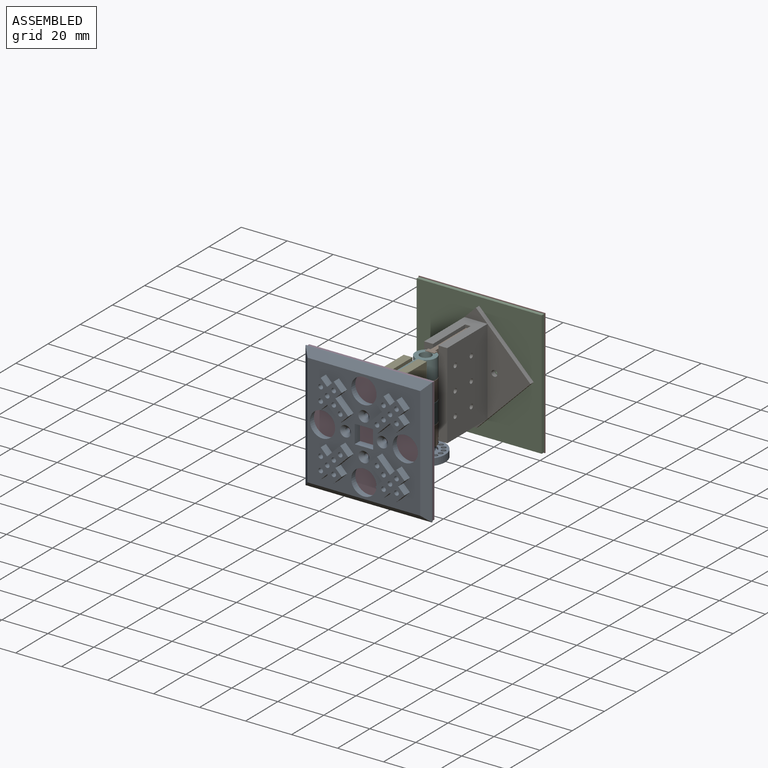
[diagram: assembled view]
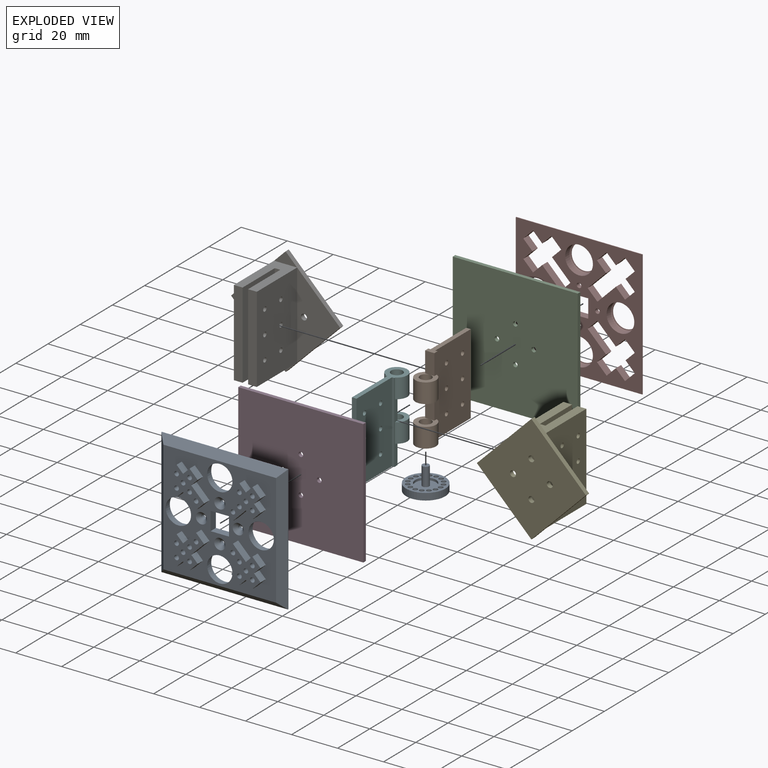
[diagram: exploded view]
GUIDED TOUR — MATED ASSEMBLY (Onshape document 5890c1cd3309240fdb452fa5, AutoMate assembly 5890c1cd3309240fdb452fa5_4b6ae7bb78ce8952fab262f6_d1658a0b5789746fcbf5f51b_default)

This assembly has 9 components, labeled P0..P8 below (a component is one placed occurrence of a part; the same part can appear more than once), held together by 13 mates. A mate is a constraint between two components; its type names the relative motion it leaves free:
  PLANAR — leaves sliding in the plane through the listed point (normal = the listed direction) and rotation about that normal free,
  REVOLUTE — leaves rotation about the listed axis free (a hinge),
  SLIDER — leaves translation along the listed axis free.
Axis/direction vectors are unit vectors and 'through' points are millimeter coordinates, both in the assembly's world frame.

MATES
  1. SLIDER "Slider 7": P2 <-> P6, axis (0.000, -1.000, 0.000) through (11.00, 66.49, 9.60) mm
  2. SLIDER "Slider 6": P7 <-> P2, axis (0.000, 1.000, 0.000) through (3.00, 71.39, 1.60) mm
  3. SLIDER "Slider 3": P8 <-> P3, axis (0.000, -1.000, 0.000) through (3.20, -5.41, 1.35) mm
  4. SLIDER "Slider 1": P5 <-> P4, axis (1.000, 0.000, 0.000) through (4.20, 11.49, -0.65) mm
  5. PLANAR "Planar 2": P8 <-> P3, direction (0.000, 1.000, 0.000) through (3.20, -2.11, 9.35) mm
  6. SLIDER "Slider 8": P0 <-> P1, axis (0.000, 0.000, 1.000) through (3.20, 32.99, -3.05) mm
  7. SLIDER "Slider 2": P3 <-> P4, axis (0.000, -1.000, 0.000) through (-4.80, -2.11, 9.35) mm
  8. PLANAR "Planar 1": P3 <-> P4, direction (0.000, 1.000, 0.000) through (-24.00, -0.51, 36.55) mm
  9. PLANAR "Planar 3": P2 <-> P6, direction (0.000, -1.000, 0.000) through (3.00, 66.49, 9.60) mm
  10. PLANAR "Planar 5": P6 <-> P1, direction (-1.000, 0.000, 0.000) through (4.20, 49.49, 9.60) mm
  11. SLIDER "Slider 5": P6 <-> P1, axis (-1.000, 0.000, 0.000) through (4.20, 54.49, -0.40) mm
  12. REVOLUTE "Revolute 1": P1 <-> P5, axis (0.000, 0.000, 1.000) through (3.20, 32.99, 18.10) mm
  13. PLANAR "Planar 4": P7 <-> P2, direction (0.000, -1.000, 0.000) through (3.00, 68.09, 1.60) mm

ASSEMBLY ORDER
  1. P1 — the base component [order verified]
  2. P5 [order verified]
  3. P4 [order verified]
  4. P6 [order verified]
  5. P0 [order verified]
  6. P2 [order verified]
  7. P3 [order verified]
  8. P8 [order verified]
  9. P7 [order verified]
(P5 verified with a relaxed clearance tolerance: the source model stores slight part interference there.)
Order-tag legend:
  [order verified] — this step's position reverses a verified removal order: the component was checked to insert without passing through the ones already placed.

Of the 9 components, 5 carry the full construction recipe — the FeatureScript program that regenerates the part's solid from scratch; the rest are supplied as boundary geometry only.
Each toured component is shown spotlighted twice — in the assembled view, then in the exploded view, where a leader line traces a displaced component back to its assembled socket (saturated green if recipe-attached, orange if geometry-only; every other component desaturated gray) — followed by its recipe or geometry summary and the mates that hold it.
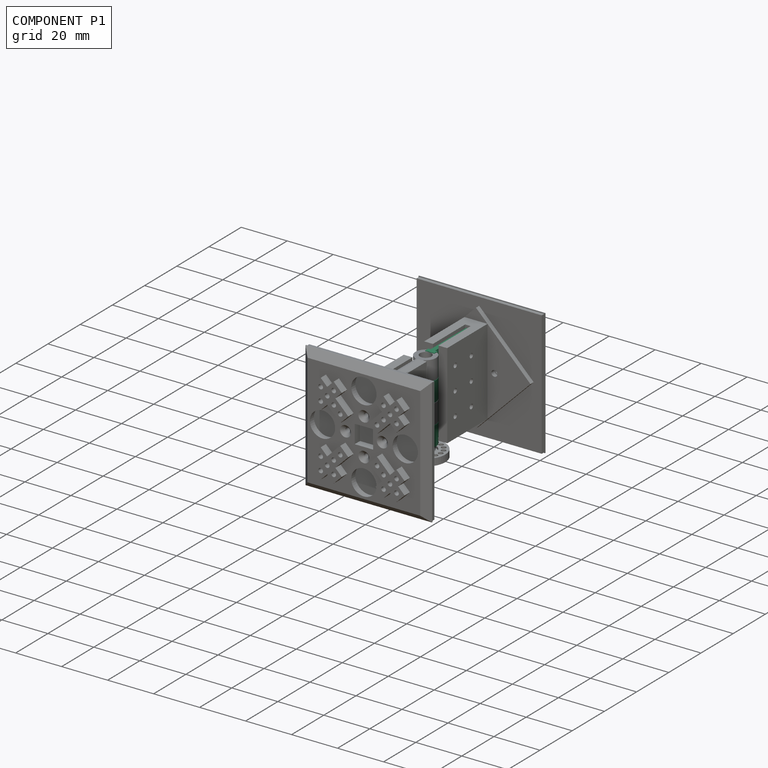
[diagram: component P1 — assembled]
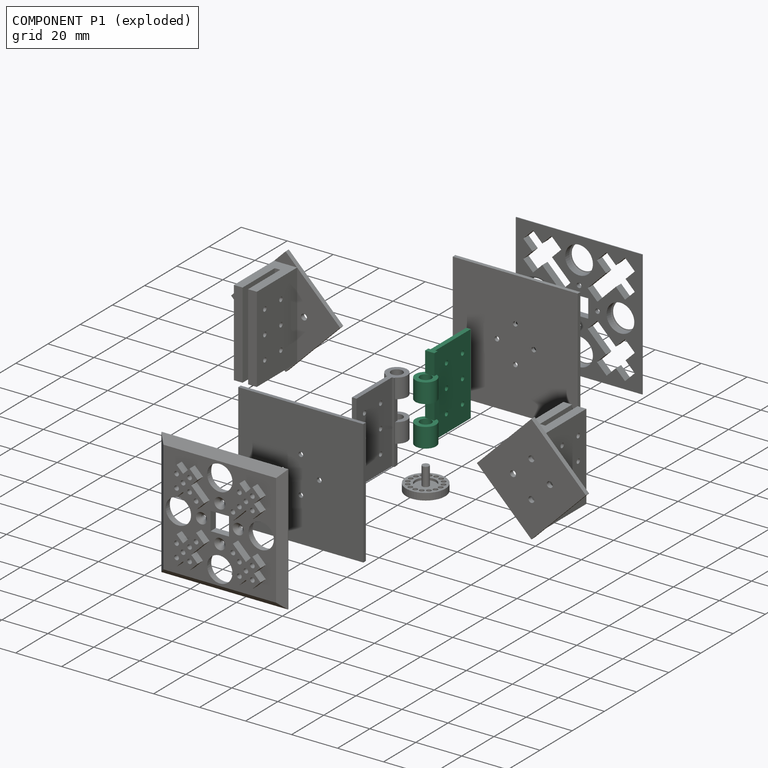
[diagram: component P1 — exploded]
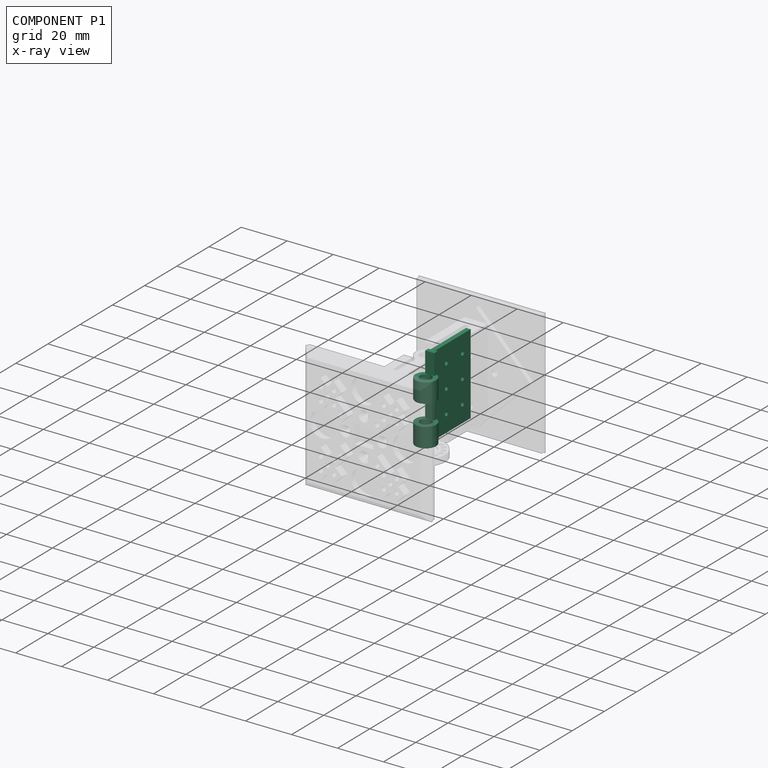
[diagram: component P1 — x-ray view]
COMPONENT P1 — recipe-attached (CADFS 00489788, mesh-verified: the recipe's output STEP matches this component's geometry to below the mesh-comparison resolution (tessellation chordal tolerance ~0.0714 mm)).
Held by: SLIDER mate "Slider 8" to P0; PLANAR mate "Planar 5" to P6; SLIDER mate "Slider 5" to P6; REVOLUTE mate "Revolute 1" to P5.
Construction recipe (FeatureScript — the CAD program that rebuilds this solid; sketch coordinates are in the units given by the * unit suffixes, e.g. mm):

FeatureScript 1511;
import(path : "onshape/std/geometry.fs", version : "1511.0");
import(path : "onshape/std/common.fs", version : "1511.0");
const mm = millimeter;
const VERTEX = EntityType.VERTEX;
const EDGE = EntityType.EDGE;
const FACE = EntityType.FACE;
const BODY = EntityType.BODY;
function v(x, y){return vector(x, y);}
function OD(order){return orderDisambiguation(order);}
function OSD(set){return originalSetDisambiguation(set);}
function TD(topology){return topologyDisambiguation(topology);}
function TDD(query){return trueDependencyDisambiguation(query);}
function sQuery(a, b, c) {return sketchEntityQuery(a, b, c);}

annotation { "Feature Type Name" : "Feature", "Feature Type Description" : "" }
export const myFeature = defineFeature(function(context is Context, id is Id, definition is map)
    precondition{}
    {
        {
            var Q0;
            Q0=qCreatedBy(makeId("Front.planeOp"),FACE);
            var sketch = newSketch(context, id + "F0", { "sketchPlane" : qUnion([Q0])});
            skLineSegment(sketch, "E0.bottom", {"start": v(1, -17.5) * mm, "end": v(-1, -17.5) * mm});
            skLineSegment(sketch, "E0.top", {"start": v(1, 17.5) * mm, "end": v(-1, 17.5) * mm});
            skLineSegment(sketch, "E0.left", {"start": v(1, -17.5) * mm, "end": v(1, 17.5) * mm});
            skLineSegment(sketch, "E0.right", {"start": v(-1, -17.5) * mm, "end": v(-1, 17.5) * mm});
            skSolve(sketch);
        }
        {
            var Q0;
            Q0=makeQuery(id+"F0.imprint","IMPRINT",FACE,{"disambiguationData":[TD([[makeQuery(id+"F0.imprint","IMPRINT",EDGE,{"derivedFrom":sQuery(id+"F0.wireOp",EDGE,"E0.bottom")}),-1.0]])]});
            extrude(context, id + "F1", {"entities" : qUnion([Q0]), "depth" : 22 * mm});
        }
        {
            var Q0;
            Q0=makeQuery(id+"F1.opExtrude","SWEPT_FACE",FACE,{"disambiguationData":[OSD([sQuery(id+"F0.wireOp",EDGE,"E0.right")])]});
            var sketch = newSketch(context, id + "F2", { "sketchPlane" : qUnion([Q0])});
            skCircle(sketch, "E1", {"center": v(15, 10) * mm, "radius": 1 * mm});
            skCircle(sketch, "E2", {"center": v(5, 10) * mm, "radius": 1 * mm});
            skCircle(sketch, "E3", {"center": v(15, 0) * mm, "radius": 1 * mm});
            skCircle(sketch, "E4", {"center": v(5, 0) * mm, "radius": 1 * mm});
            skCircle(sketch, "E5", {"center": v(15, -10) * mm, "radius": 1 * mm});
            skCircle(sketch, "E6", {"center": v(5, -10) * mm, "radius": 1 * mm});
            skSolve(sketch);
        }
        {
            var Q0;
            Q0=makeQuery(id+"F2.imprint","IMPRINT",FACE,{"disambiguationData":[TD([[makeQuery(id+"F2.imprint","IMPRINT",EDGE,{"derivedFrom":sQuery(id+"F2.wireOp",EDGE,"E2")}),1.0]])]});
            var Q1;
            Q1=makeQuery(id+"F2.imprint","IMPRINT",FACE,{"disambiguationData":[TD([[makeQuery(id+"F2.imprint","IMPRINT",EDGE,{"derivedFrom":sQuery(id+"F2.wireOp",EDGE,"E1")}),1.0]])]});
            var Q2;
            Q2=makeQuery(id+"F2.imprint","IMPRINT",FACE,{"disambiguationData":[TD([[makeQuery(id+"F2.imprint","IMPRINT",EDGE,{"derivedFrom":sQuery(id+"F2.wireOp",EDGE,"E3")}),1.0]])]});
            var Q3;
            Q3=makeQuery(id+"F2.imprint","IMPRINT",FACE,{"disambiguationData":[TD([[makeQuery(id+"F2.imprint","IMPRINT",EDGE,{"derivedFrom":sQuery(id+"F2.wireOp",EDGE,"E4")}),1.0]])]});
            var Q4;
            Q4=makeQuery(id+"F2.imprint","IMPRINT",FACE,{"disambiguationData":[TD([[makeQuery(id+"F2.imprint","IMPRINT",EDGE,{"derivedFrom":sQuery(id+"F2.wireOp",EDGE,"E6")}),1.0]])]});
            var Q5;
            Q5=makeQuery(id+"F2.imprint","IMPRINT",FACE,{"disambiguationData":[TD([[makeQuery(id+"F2.imprint","IMPRINT",EDGE,{"derivedFrom":sQuery(id+"F2.wireOp",EDGE,"E5")}),1.0]])]});
            extrude(context, id + "F3", {"entities" : qUnion([Q0, Q1, Q2, Q3, Q4, Q5]), "operationType" : NewBodyOperationType.REMOVE, "oppositeDirection" : true, "depth" : 25 * mm});
        }
        {
            var Q0;
            Q0=makeQuery(id+"F1.opExtrude","CAP_FACE",FACE,{"disambiguationData":[OSD([sQuery(id+"F0.wireOp",EDGE,"E0.bottom"),sQuery(id+"F0.wireOp",EDGE,"E0.top"),sQuery(id+"F0.wireOp",EDGE,"E0.left"),sQuery(id+"F0.wireOp",EDGE,"E0.right")])],"isStart":false});
            var sketch = newSketch(context, id + "F4", { "sketchPlane" : qUnion([Q0])});
            skLineSegment(sketch, "E7.bottom", {"start": v(-2, 17.5) * mm, "end": v(2, 17.5) * mm});
            skLineSegment(sketch, "E7.top", {"start": v(-2, -17.5) * mm, "end": v(2, -17.5) * mm});
            skLineSegment(sketch, "E7.left", {"start": v(-2, 17.5) * mm, "end": v(-2, -17.5) * mm});
            skLineSegment(sketch, "E7.right", {"start": v(2, 17.5) * mm, "end": v(2, -17.5) * mm});
            skSolve(sketch);
        }
        {
            var Q0;
            {var subQ2=sQuery(id+"F4.wireOp",EDGE,"E7.left");Q0=makeQuery(id+"F4.imprint","IMPRINT",FACE,{"disambiguationData":[TD([[makeQuery(id+"F4.imprint","IMPRINT",EDGE,{"derivedFrom":subQ2}),1.0]])]});}
            var Q1;
            {var subQ2=sQuery(id+"F4.wireOp",EDGE,"E7.right");Q1=makeQuery(id+"F4.imprint","IMPRINT",FACE,{"disambiguationData":[TD([[makeQuery(id+"F4.imprint","IMPRINT",EDGE,{"derivedFrom":subQ2}),-1.0]])]});}
            var Q2;
            {var subQ1=makeQuery(id+"F1.opExtrude","CAP_EDGE",EDGE,{"disambiguationData":[OSD([sQuery(id+"F0.wireOp",EDGE,"E0.left")])],"isStart":false});Q2=makeQuery(id+"F4.imprint","IMPRINT",FACE,{"disambiguationData":[TD([[makeQuery(id+"F4.imprint","IMPRINT",EDGE,{"derivedFrom":subQ1}),1.0]])]});}
            extrude(context, id + "F5", {"entities" : qUnion([Q0, Q1, Q2]), "operationType" : NewBodyOperationType.ADD, "depth" : 2 * mm});
        }
        {
            var Q0;
            Q0=makeQuery(id+"F5.boolean.opBoolean","MERGE",FACE,{"derivedFrom":[makeQuery(id+"F1.opExtrude","SWEPT_FACE",FACE,{"disambiguationData":[OSD([sQuery(id+"F0.wireOp",EDGE,"E0.bottom")])]}),makeQuery(id+"F5.opExtrude","SWEPT_FACE",FACE,{"disambiguationData":[OSD([sQuery(id+"F4.wireOp",EDGE,"E7.top")])]})]});
            var sketch = newSketch(context, id + "F6", { "sketchPlane" : qUnion([Q0])});
            skCircle(sketch, "E8", {"center": v(0, 26.5) * mm, "radius": 2.5 * mm});
            skPoint(sketch, "E8.centerSnap0", {"position": v(0, 24) * mm});
            skCircle(sketch, "E9", {"center": v(0, 26.5) * mm, "radius": 4.5 * mm});
            skSolve(sketch);
        }
        {
            var Q0;
            {var subQ0=sQuery(id+"F0.wireOp",EDGE,"E0.bottom");Q0=makeQuery(id+"F6.imprint","IMPRINT",FACE,{"disambiguationData":[TD([[makeQuery(id+"F6.imprint","IMPRINT",EDGE,{"derivedFrom":makeQuery(id+"F1.opExtrude","CAP_EDGE",EDGE,{"disambiguationData":[OSD([subQ0])],"isStart":true})}),-1.0]])]});}
            cPlane(context, id + "F7", {"entities" : qUnion([Q0]), "cplaneType" : CPlaneType.OFFSET, "offset" : 17.5 * mm, "oppositeDirection" : true, "width" : 150 * mm, "height" : 150 * mm});
        }
        {
            var Q0;
            Q0=qCreatedBy(id+"F7.planeOp",FACE);
            var sketch = newSketch(context, id + "F8", { "sketchPlane" : qUnion([Q0])});
            skCircle(sketch, "E10", {"center": v(0, 26.5) * mm, "radius": 2.5 * mm});
            skCircle(sketch, "E11", {"center": v(0, 26.5) * mm, "radius": 4.5 * mm});
            skSolve(sketch);
        }
        {
            var Q0;
            Q0=makeQuery(id+"F8.imprint","IMPRINT",FACE,{"disambiguationData":[TD([[makeQuery(id+"F8.imprint","IMPRINT",EDGE,{"derivedFrom":sQuery(id+"F8.wireOp",EDGE,"E10")}),-1.0]])]});
            var Q1;
            {var subQ0=sQuery(id+"F6.wireOp",EDGE,"E8");Q1=makeQuery(id+"F6.imprint","IMPRINT",FACE,{"disambiguationData":[TD([[makeQuery(id+"F6.imprint","IMPRINT",EDGE,{"derivedFrom":subQ0}),-1.0]])]});}
            var Q2;
            {var subQ0=sQuery(id+"F6.wireOp",EDGE,"E9");var subQ1=makeQuery(id+"F5.opExtrude","CAP_EDGE",EDGE,{"disambiguationData":[OSD([sQuery(id+"F4.wireOp",EDGE,"E7.top")])],"isStart":false});var subQ2=makeQuery(id+"F6.imprint","INTERSECT",VERTEX,{"disambiguationData":[OD(0.0)],"derivedFrom":[subQ1,subQ0]});Q2=makeQuery(id+"F6.imprint","IMPRINT",FACE,{"disambiguationData":[TD([[makeQuery(id+"F6.imprint","IMPRINT",EDGE,{"disambiguationData":[TD([[subQ2,-1.0]])],"derivedFrom":subQ0}),1.0]])]});}
            extrude(context, id + "F9", {"entities" : qUnion([Q0, Q1, Q2]), "operationType" : NewBodyOperationType.ADD, "oppositeDirection" : true, "depth" : 8.5 * mm});
        }
    });
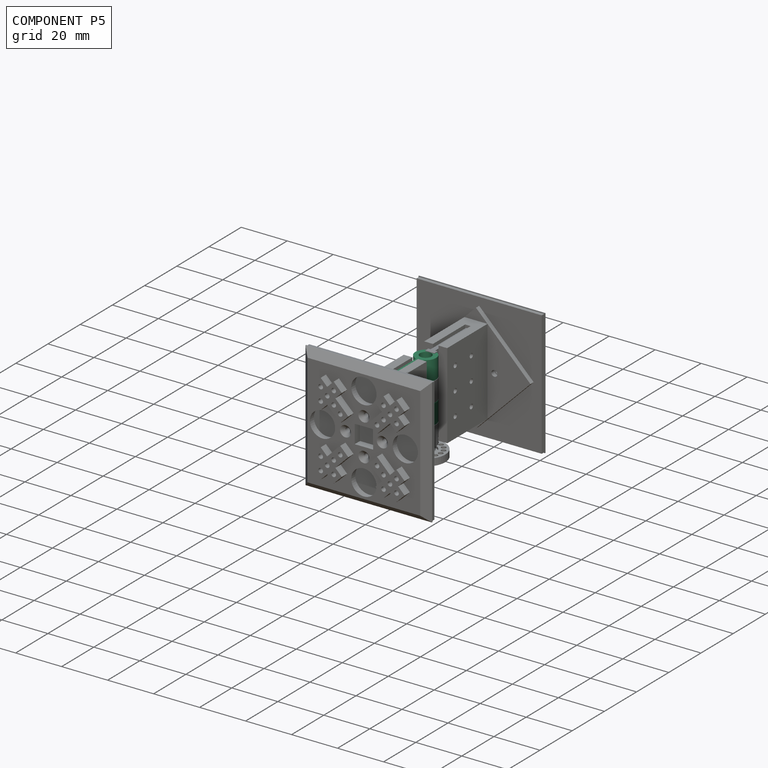
[diagram: component P5 — assembled]
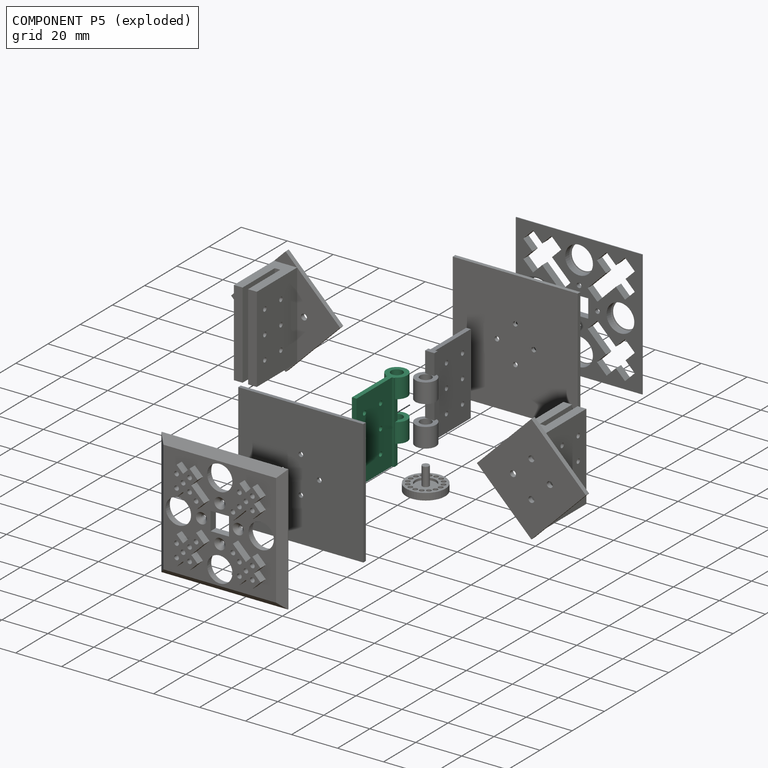
[diagram: component P5 — exploded]
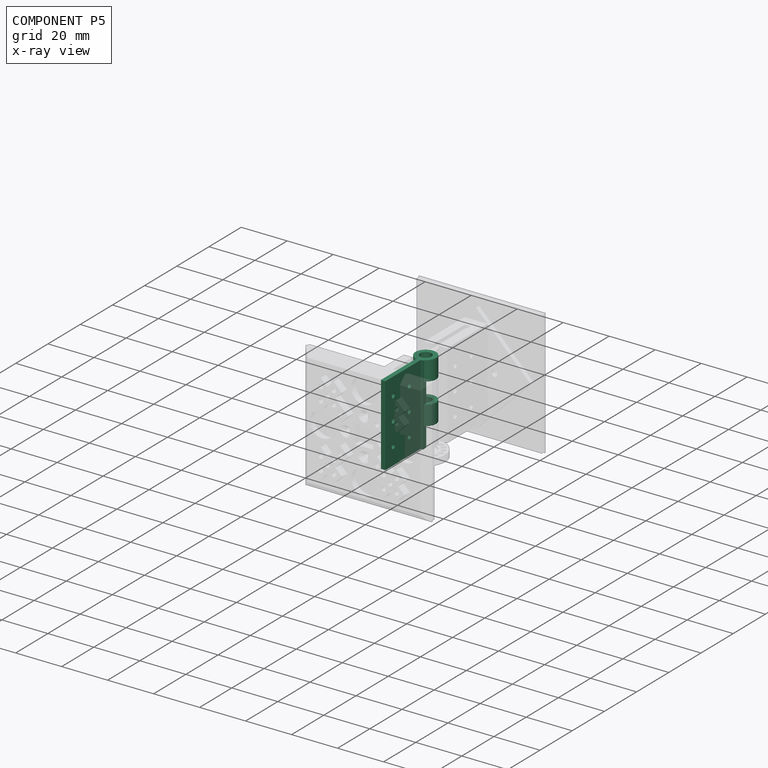
[diagram: component P5 — x-ray view]
COMPONENT P5 — same part as P1 (CADFS 00489788); its construction recipe is shown at P1.
Held by: SLIDER mate "Slider 1" to P4; REVOLUTE mate "Revolute 1" to P1.
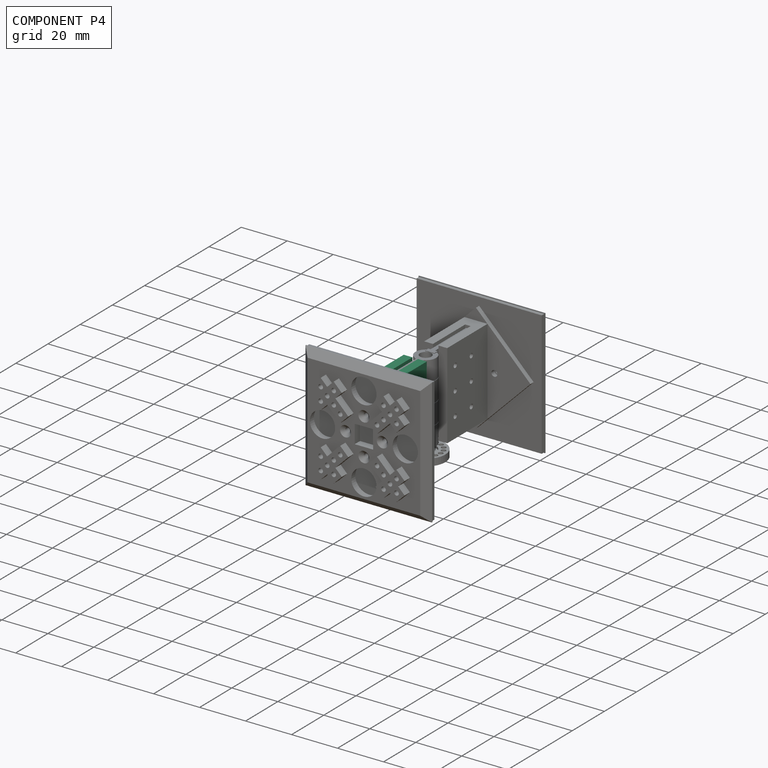
[diagram: component P4 — assembled]
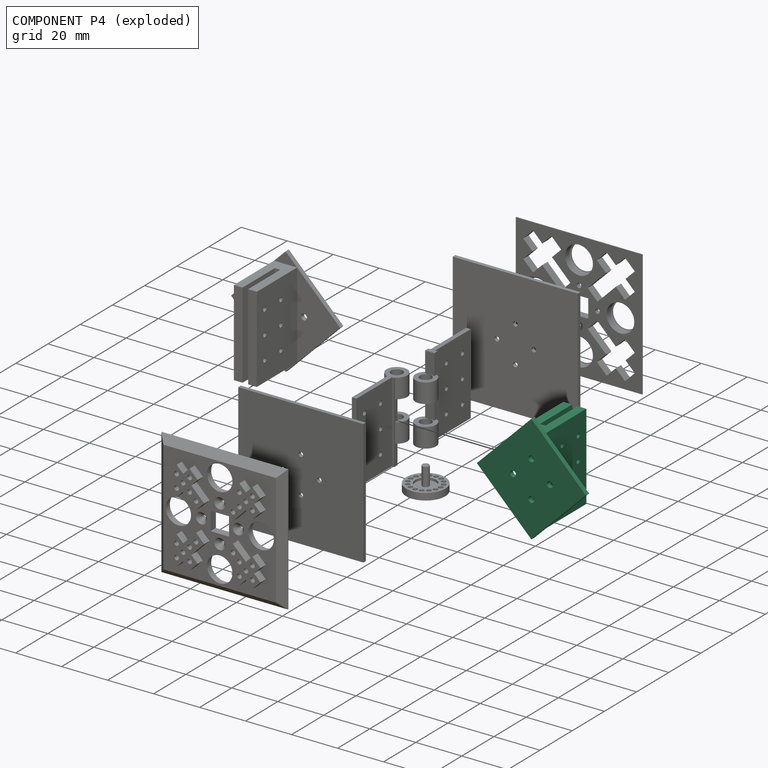
[diagram: component P4 — exploded]
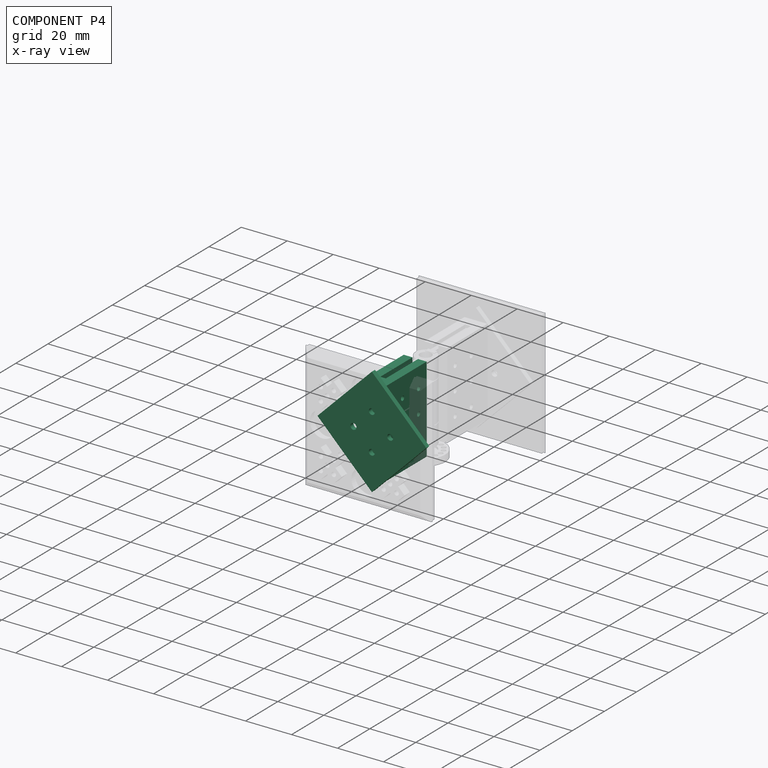
[diagram: component P4 — x-ray view]
COMPONENT P4 — recipe-attached (CADFS 00489787, mesh-verified: the recipe's output STEP matches this component's geometry to below the mesh-comparison resolution (tessellation chordal tolerance ~0.108 mm)).
Held by: SLIDER mate "Slider 1" to P5; SLIDER mate "Slider 2" to P3; PLANAR mate "Planar 1" to P3.
Construction recipe (FeatureScript — the CAD program that rebuilds this solid; sketch coordinates are in the units given by the * unit suffixes, e.g. mm):

FeatureScript 1511;
import(path : "onshape/std/geometry.fs", version : "1511.0");
import(path : "onshape/std/common.fs", version : "1511.0");
const mm = millimeter;
const VERTEX = EntityType.VERTEX;
const EDGE = EntityType.EDGE;
const FACE = EntityType.FACE;
const BODY = EntityType.BODY;
function v(x, y){return vector(x, y);}
function OD(order){return orderDisambiguation(order);}
function OSD(set){return originalSetDisambiguation(set);}
function TD(topology){return topologyDisambiguation(topology);}
function TDD(query){return trueDependencyDisambiguation(query);}
function sQuery(a, b, c) {return sketchEntityQuery(a, b, c);}

annotation { "Feature Type Name" : "Feature", "Feature Type Description" : "" }
export const myFeature = defineFeature(function(context is Context, id is Id, definition is map)
    precondition{}
    {
        {
            var Q0;
            Q0=qCreatedBy(makeId("Front.planeOp"),FACE);
            var sketch = newSketch(context, id + "F0", { "sketchPlane" : qUnion([Q0])});
            skLineSegment(sketch, "E0.bottom", {"start": v(-27.5, 27.5) * mm, "end": v(27.5, 27.5) * mm});
            skLineSegment(sketch, "E0.top", {"start": v(-27.5, -27.5) * mm, "end": v(27.5, -27.5) * mm});
            skLineSegment(sketch, "E0.left", {"start": v(-27.5, 27.5) * mm, "end": v(-27.5, -27.5) * mm});
            skLineSegment(sketch, "E0.right", {"start": v(27.5, 27.5) * mm, "end": v(27.5, -27.5) * mm});
            skCircle(sketch, "E1", {"center": v(-8, 0) * mm, "radius": 1.3 * mm});
            skLineSegment(sketch, "E2", {"start": v(5.69, 29.4) * mm, "end": v(-11.28, 46.36) * mm});
            skLineSegment(sketch, "E3", {"start": v(-11.28, 46.36) * mm, "end": v(-46.6, 11.04) * mm});
            skLineSegment(sketch, "E4", {"start": v(-46.6, 11.04) * mm, "end": v(-29.63, -5.93) * mm});
            skLineSegment(sketch, "E5", {"start": v(-29.63, -5.93) * mm, "end": v(5.69, 29.4) * mm});
            skCircle(sketch, "E6.1.0", {"center": v(0, -8) * mm, "radius": 1.3 * mm});
            skLineSegment(sketch, "E6.1.1", {"start": v(5.93, -29.63) * mm, "end": v(-29.4, 5.69) * mm});
            skLineSegment(sketch, "E6.1.2", {"start": v(-11.04, -46.6) * mm, "end": v(5.93, -29.63) * mm});
            skLineSegment(sketch, "E6.1.3", {"start": v(-46.36, -11.28) * mm, "end": v(-11.04, -46.6) * mm});
            skLineSegment(sketch, "E6.1.4", {"start": v(-29.4, 5.69) * mm, "end": v(-46.36, -11.28) * mm});
            skCircle(sketch, "E6.2.0", {"center": v(8, 0) * mm, "radius": 1.3 * mm});
            skLineSegment(sketch, "E6.2.1", {"start": v(29.63, 5.93) * mm, "end": v(-5.69, -29.4) * mm});
            skLineSegment(sketch, "E6.2.2", {"start": v(46.6, -11.04) * mm, "end": v(29.63, 5.93) * mm});
            skLineSegment(sketch, "E6.2.3", {"start": v(11.28, -46.36) * mm, "end": v(46.6, -11.04) * mm});
            skLineSegment(sketch, "E6.2.4", {"start": v(-5.69, -29.4) * mm, "end": v(11.28, -46.36) * mm});
            skCircle(sketch, "E6.3.0", {"center": v(0, 8) * mm, "radius": 1.3 * mm});
            skLineSegment(sketch, "E6.3.1", {"start": v(-5.93, 29.63) * mm, "end": v(29.4, -5.69) * mm});
            skLineSegment(sketch, "E6.3.2", {"start": v(11.04, 46.6) * mm, "end": v(-5.93, 29.63) * mm});
            skLineSegment(sketch, "E6.3.3", {"start": v(46.36, 11.28) * mm, "end": v(11.04, 46.6) * mm});
            skLineSegment(sketch, "E6.3.4", {"start": v(29.4, -5.69) * mm, "end": v(46.36, 11.28) * mm});
            skPoint(sketch, "E6.center", {"position": v(0, 0) * mm});
            skSolve(sketch);
        }
        {
            var Q0;
            Q0=makeQuery(id+"F0.imprint","IMPRINT",FACE,{"disambiguationData":[TD([[makeQuery(id+"F0.imprint","IMPRINT",EDGE,{"derivedFrom":sQuery(id+"F0.wireOp",EDGE,"E1")}),-1.0]])]});
            extrude(context, id + "F1", {"entities" : qUnion([Q0]), "depth" : 2 * mm});
        }
        {
            var Q0;
            Q0=makeQuery(id+"F1.opExtrude","CAP_FACE",FACE,{"disambiguationData":[OSD([sQuery(id+"F0.wireOp",EDGE,"E1"),sQuery(id+"F0.wireOp",EDGE,"E5"),sQuery(id+"F0.wireOp",EDGE,"E6.1.0"),sQuery(id+"F0.wireOp",EDGE,"E6.1.1"),sQuery(id+"F0.wireOp",EDGE,"E6.2.0"),sQuery(id+"F0.wireOp",EDGE,"E6.2.1"),sQuery(id+"F0.wireOp",EDGE,"E6.3.0"),sQuery(id+"F0.wireOp",EDGE,"E6.3.1")])],"isStart":true});
            var sketch = newSketch(context, id + "F2", { "sketchPlane" : qUnion([Q0])});
            skLineSegment(sketch, "E7.bottom", {"start": v(-5, 18.7) * mm, "end": v(5, 18.7) * mm});
            skLineSegment(sketch, "E7.top", {"start": v(-5, -18.7) * mm, "end": v(5, -18.7) * mm});
            skLineSegment(sketch, "E7.left", {"start": v(-5, 18.7) * mm, "end": v(-5, -18.7) * mm});
            skLineSegment(sketch, "E7.right", {"start": v(5, 18.7) * mm, "end": v(5, -18.7) * mm});
            skSolve(sketch);
        }
        {
            var Q0;
            Q0=qSketchRegion(id+"F2",true);
            extrude(context, id + "F3", {"entities" : qUnion([Q0]), "operationType" : NewBodyOperationType.ADD, "depth" : 25 * mm});
        }
        {
            var Q0;
            Q0=makeQuery(id+"F3.opExtrude","CAP_FACE",FACE,{"disambiguationData":[OSD([sQuery(id+"F2.wireOp",EDGE,"E7.bottom"),sQuery(id+"F2.wireOp",EDGE,"E7.top"),sQuery(id+"F2.wireOp",EDGE,"E7.left"),sQuery(id+"F2.wireOp",EDGE,"E7.right")])],"isStart":false});
            var sketch = newSketch(context, id + "F4", { "sketchPlane" : qUnion([Q0])});
            skLineSegment(sketch, "E8.bottom", {"start": v(-1.2, 18.7) * mm, "end": v(1.2, 18.7) * mm});
            skLineSegment(sketch, "E8.top", {"start": v(-1.2, -18.7) * mm, "end": v(1.2, -18.7) * mm});
            skLineSegment(sketch, "E8.left", {"start": v(-1.2, 18.7) * mm, "end": v(-1.2, -18.7) * mm});
            skLineSegment(sketch, "E8.right", {"start": v(1.2, 18.7) * mm, "end": v(1.2, -18.7) * mm});
            skSolve(sketch);
        }
        {
            var Q0;
            Q0=qSketchRegion(id+"F4",true);
            extrude(context, id + "F5", {"entities" : qUnion([Q0]), "operationType" : NewBodyOperationType.REMOVE, "oppositeDirection" : true, "depth" : 20 * mm});
        }
        {
            var Q0;
            Q0=makeQuery(id+"F3.opExtrude","SWEPT_FACE",FACE,{"disambiguationData":[OSD([sQuery(id+"F2.wireOp",EDGE,"E7.right")])]});
            var sketch = newSketch(context, id + "F6", { "sketchPlane" : qUnion([Q0])});
            skCircle(sketch, "E9", {"center": v(-20, 10) * mm, "radius": 1 * mm});
            skCircle(sketch, "E10", {"center": v(-20, -10) * mm, "radius": 1 * mm});
            skCircle(sketch, "E11", {"center": v(-20, 0) * mm, "radius": 1 * mm});
            skCircle(sketch, "E12", {"center": v(-10, 0) * mm, "radius": 1 * mm});
            skCircle(sketch, "E13", {"center": v(-10, 10) * mm, "radius": 1 * mm});
            skCircle(sketch, "E14", {"center": v(-10, -10) * mm, "radius": 1 * mm});
            skSolve(sketch);
        }
        {
            var Q0;
            Q0=makeQuery(id+"F6.imprint","IMPRINT",FACE,{"disambiguationData":[TD([[makeQuery(id+"F6.imprint","IMPRINT",EDGE,{"derivedFrom":sQuery(id+"F6.wireOp",EDGE,"E9")}),1.0]])]});
            var Q1;
            Q1=makeQuery(id+"F6.imprint","IMPRINT",FACE,{"disambiguationData":[TD([[makeQuery(id+"F6.imprint","IMPRINT",EDGE,{"derivedFrom":sQuery(id+"F6.wireOp",EDGE,"E13")}),1.0]])]});
            var Q2;
            Q2=makeQuery(id+"F6.imprint","IMPRINT",FACE,{"disambiguationData":[TD([[makeQuery(id+"F6.imprint","IMPRINT",EDGE,{"derivedFrom":sQuery(id+"F6.wireOp",EDGE,"E12")}),1.0]])]});
            var Q3;
            Q3=makeQuery(id+"F6.imprint","IMPRINT",FACE,{"disambiguationData":[TD([[makeQuery(id+"F6.imprint","IMPRINT",EDGE,{"derivedFrom":sQuery(id+"F6.wireOp",EDGE,"E11")}),1.0]])]});
            var Q4;
            Q4=makeQuery(id+"F6.imprint","IMPRINT",FACE,{"disambiguationData":[TD([[makeQuery(id+"F6.imprint","IMPRINT",EDGE,{"derivedFrom":sQuery(id+"F6.wireOp",EDGE,"E10")}),1.0]])]});
            var Q5;
            Q5=makeQuery(id+"F6.imprint","IMPRINT",FACE,{"disambiguationData":[TD([[makeQuery(id+"F6.imprint","IMPRINT",EDGE,{"derivedFrom":sQuery(id+"F6.wireOp",EDGE,"E14")}),1.0]])]});
            extrude(context, id + "F7", {"entities" : qUnion([Q0, Q1, Q2, Q3, Q4, Q5]), "operationType" : NewBodyOperationType.REMOVE, "oppositeDirection" : true, "depth" : 25 * mm});
        }
    });
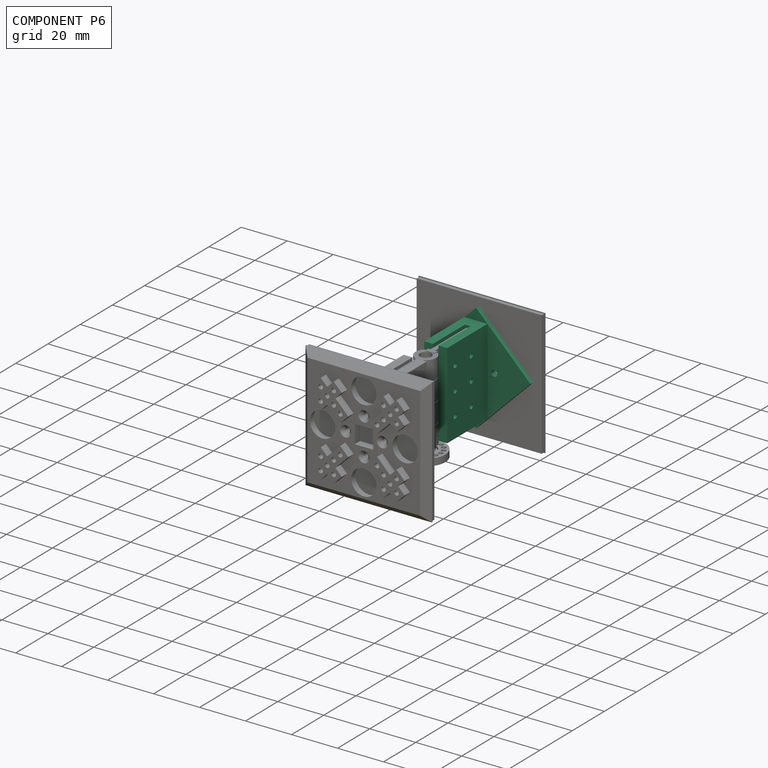
[diagram: component P6 — assembled]
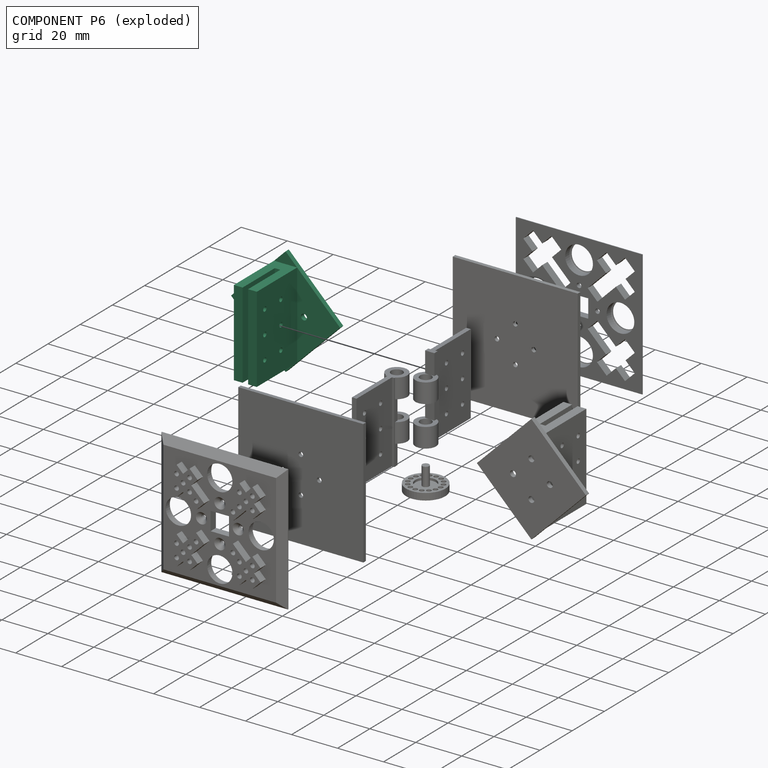
[diagram: component P6 — exploded]
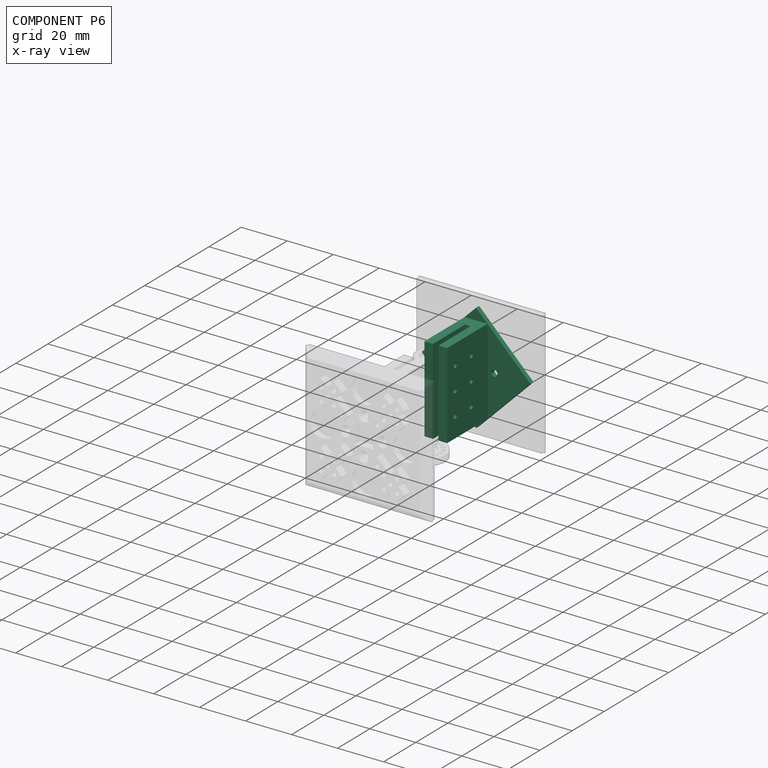
[diagram: component P6 — x-ray view]
COMPONENT P6 — same part as P4 (CADFS 00489787); its construction recipe is shown at P4.
Held by: SLIDER mate "Slider 7" to P2; PLANAR mate "Planar 3" to P2; PLANAR mate "Planar 5" to P1; SLIDER mate "Slider 5" to P1.
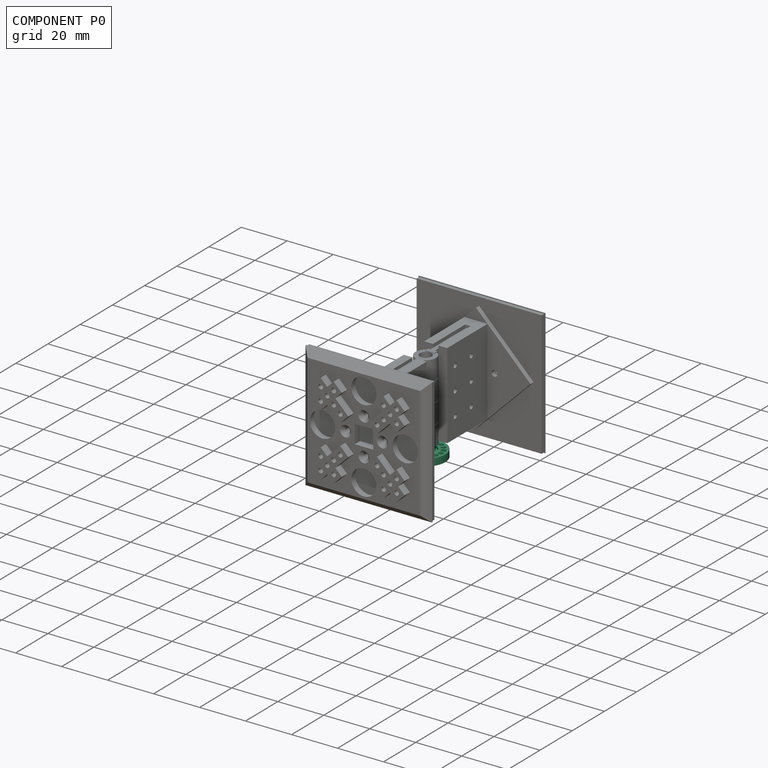
[diagram: component P0 — assembled]
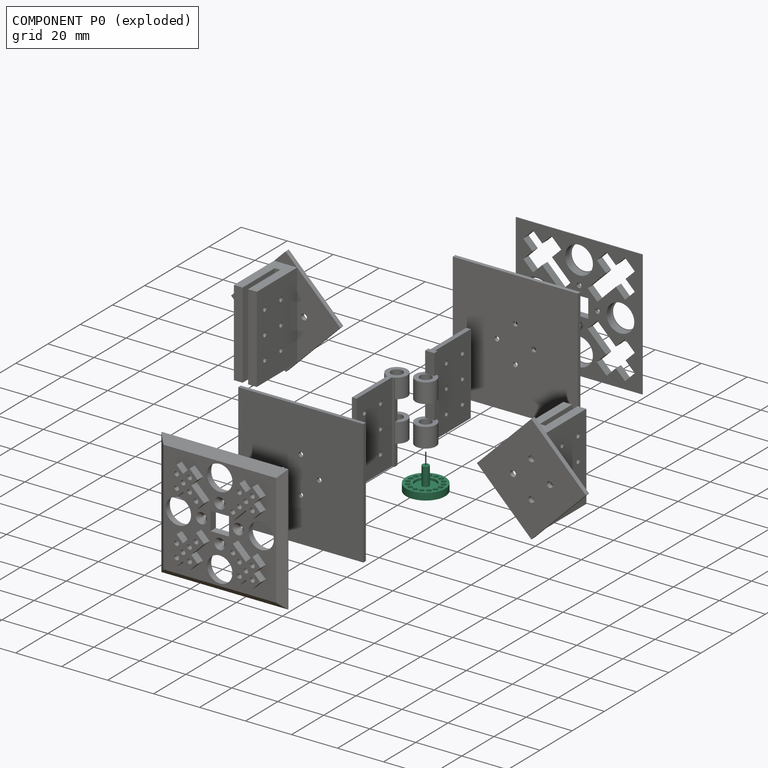
[diagram: component P0 — exploded]
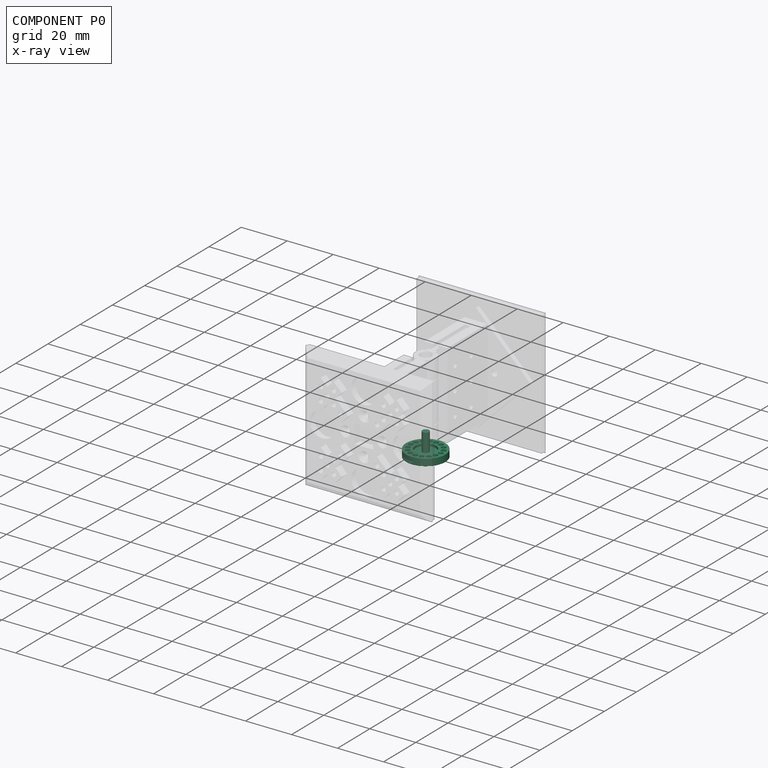
[diagram: component P0 — x-ray view]
COMPONENT P0 — recipe-attached (CADFS 00489789, mesh-verified: the recipe's output STEP matches this component's geometry to below the mesh-comparison resolution (tessellation chordal tolerance ~0.039 mm)).
Held by: SLIDER mate "Slider 8" to P1.
Construction recipe (FeatureScript — the CAD program that rebuilds this solid; sketch coordinates are in the units given by the * unit suffixes, e.g. mm):

FeatureScript 1511;
import(path : "onshape/std/geometry.fs", version : "1511.0");
import(path : "onshape/std/common.fs", version : "1511.0");
const mm = millimeter;
const VERTEX = EntityType.VERTEX;
const EDGE = EntityType.EDGE;
const FACE = EntityType.FACE;
const BODY = EntityType.BODY;
function v(x, y){return vector(x, y);}
function OD(order){return orderDisambiguation(order);}
function OSD(set){return originalSetDisambiguation(set);}
function TD(topology){return topologyDisambiguation(topology);}
function TDD(query){return trueDependencyDisambiguation(query);}
function sQuery(a, b, c) {return sketchEntityQuery(a, b, c);}

annotation { "Feature Type Name" : "Feature", "Feature Type Description" : "" }
export const myFeature = defineFeature(function(context is Context, id is Id, definition is map)
    precondition{}
    {
        {
            var Q0;
            Q0=qCreatedBy(makeId("Front.planeOp"),FACE);
            var sketch = newSketch(context, id + "F0", { "sketchPlane" : qUnion([Q0])});
            skCircle(sketch, "E0", {"center": v(0, 0) * mm, "radius": 8.5 * mm});
            skCircle(sketch, "E1", {"center": v(0, 0) * mm, "radius": 4.5 * mm});
            skSolve(sketch);
        }
        {
            var Q0;
            Q0=makeQuery(id+"F0.imprint","IMPRINT",FACE,{"disambiguationData":[TD([[makeQuery(id+"F0.imprint","IMPRINT",EDGE,{"derivedFrom":sQuery(id+"F0.wireOp",EDGE,"E0")}),1.0]])]});
            extrude(context, id + "F1", {"entities" : qUnion([Q0]), "depth" : 3 * mm});
        }
        {
            var Q0;
            Q0=makeQuery(id+"F1.opExtrude","CAP_FACE",FACE,{"disambiguationData":[OSD([sQuery(id+"F0.wireOp",EDGE,"E0"),sQuery(id+"F0.wireOp",EDGE,"E1")])],"isStart":false});
            var sketch = newSketch(context, id + "F2", { "sketchPlane" : qUnion([Q0])});
            skCircle(sketch, "E2", {"center": v(0, 6.5) * mm, "radius": 1 * mm});
            skCircle(sketch, "E3.1.0", {"center": v(-2.49, 6) * mm, "radius": 1 * mm});
            skCircle(sketch, "E3.2.0", {"center": v(-4.6, 4.6) * mm, "radius": 1 * mm});
            skCircle(sketch, "E3.3.0", {"center": v(-6, 2.49) * mm, "radius": 1 * mm});
            skCircle(sketch, "E3.4.0", {"center": v(-6.5, 0) * mm, "radius": 1 * mm});
            skCircle(sketch, "E3.5.0", {"center": v(-6, -2.49) * mm, "radius": 1 * mm});
            skCircle(sketch, "E3.6.0", {"center": v(-4.6, -4.6) * mm, "radius": 1 * mm});
            skCircle(sketch, "E3.7.0", {"center": v(-2.49, -6) * mm, "radius": 1 * mm});
            skCircle(sketch, "E3.8.0", {"center": v(0, -6.5) * mm, "radius": 1 * mm});
            skCircle(sketch, "E3.9.0", {"center": v(2.49, -6) * mm, "radius": 1 * mm});
            skCircle(sketch, "E3.10.0", {"center": v(4.6, -4.6) * mm, "radius": 1 * mm});
            skCircle(sketch, "E3.11.0", {"center": v(6, -2.49) * mm, "radius": 1 * mm});
            skCircle(sketch, "E3.12.0", {"center": v(6.5, 0) * mm, "radius": 1 * mm});
            skCircle(sketch, "E3.13.0", {"center": v(6, 2.49) * mm, "radius": 1 * mm});
            skCircle(sketch, "E3.14.0", {"center": v(4.6, 4.6) * mm, "radius": 1 * mm});
            skCircle(sketch, "E3.15.0", {"center": v(2.49, 6) * mm, "radius": 1 * mm});
            skPoint(sketch, "E3.center", {"position": v(0, 0) * mm});
            skSolve(sketch);
        }
        {
            var Q0;
            Q0=makeQuery(id+"F2.imprint","IMPRINT",FACE,{"disambiguationData":[TD([[makeQuery(id+"F2.imprint","IMPRINT",EDGE,{"derivedFrom":sQuery(id+"F2.wireOp",EDGE,"E2")}),1.0]])]});
            var Q1;
            Q1=makeQuery(id+"F2.imprint","IMPRINT",FACE,{"disambiguationData":[TD([[makeQuery(id+"F2.imprint","IMPRINT",EDGE,{"derivedFrom":sQuery(id+"F2.wireOp",EDGE,"E3.15.0")}),1.0]])]});
            var Q2;
            Q2=makeQuery(id+"F2.imprint","IMPRINT",FACE,{"disambiguationData":[TD([[makeQuery(id+"F2.imprint","IMPRINT",EDGE,{"derivedFrom":sQuery(id+"F2.wireOp",EDGE,"E3.14.0")}),1.0]])]});
            var Q3;
            Q3=makeQuery(id+"F2.imprint","IMPRINT",FACE,{"disambiguationData":[TD([[makeQuery(id+"F2.imprint","IMPRINT",EDGE,{"derivedFrom":sQuery(id+"F2.wireOp",EDGE,"E3.13.0")}),1.0]])]});
            var Q4;
            Q4=makeQuery(id+"F2.imprint","IMPRINT",FACE,{"disambiguationData":[TD([[makeQuery(id+"F2.imprint","IMPRINT",EDGE,{"derivedFrom":sQuery(id+"F2.wireOp",EDGE,"E3.12.0")}),1.0]])]});
            var Q5;
            Q5=makeQuery(id+"F2.imprint","IMPRINT",FACE,{"disambiguationData":[TD([[makeQuery(id+"F2.imprint","IMPRINT",EDGE,{"derivedFrom":sQuery(id+"F2.wireOp",EDGE,"E3.11.0")}),1.0]])]});
            var Q6;
            Q6=makeQuery(id+"F2.imprint","IMPRINT",FACE,{"disambiguationData":[TD([[makeQuery(id+"F2.imprint","IMPRINT",EDGE,{"derivedFrom":sQuery(id+"F2.wireOp",EDGE,"E3.10.0")}),1.0]])]});
            var Q7;
            Q7=makeQuery(id+"F2.imprint","IMPRINT",FACE,{"disambiguationData":[TD([[makeQuery(id+"F2.imprint","IMPRINT",EDGE,{"derivedFrom":sQuery(id+"F2.wireOp",EDGE,"E3.9.0")}),1.0]])]});
            var Q8;
            Q8=makeQuery(id+"F2.imprint","IMPRINT",FACE,{"disambiguationData":[TD([[makeQuery(id+"F2.imprint","IMPRINT",EDGE,{"derivedFrom":sQuery(id+"F2.wireOp",EDGE,"E3.8.0")}),1.0]])]});
            var Q9;
            Q9=makeQuery(id+"F2.imprint","IMPRINT",FACE,{"disambiguationData":[TD([[makeQuery(id+"F2.imprint","IMPRINT",EDGE,{"derivedFrom":sQuery(id+"F2.wireOp",EDGE,"E3.7.0")}),1.0]])]});
            var Q10;
            Q10=makeQuery(id+"F2.imprint","IMPRINT",FACE,{"disambiguationData":[TD([[makeQuery(id+"F2.imprint","IMPRINT",EDGE,{"derivedFrom":sQuery(id+"F2.wireOp",EDGE,"E3.6.0")}),1.0]])]});
            var Q11;
            Q11=makeQuery(id+"F2.imprint","IMPRINT",FACE,{"disambiguationData":[TD([[makeQuery(id+"F2.imprint","IMPRINT",EDGE,{"derivedFrom":sQuery(id+"F2.wireOp",EDGE,"E3.5.0")}),1.0]])]});
            var Q12;
            Q12=makeQuery(id+"F2.imprint","IMPRINT",FACE,{"disambiguationData":[TD([[makeQuery(id+"F2.imprint","IMPRINT",EDGE,{"derivedFrom":sQuery(id+"F2.wireOp",EDGE,"E3.4.0")}),1.0]])]});
            var Q13;
            Q13=makeQuery(id+"F2.imprint","IMPRINT",FACE,{"disambiguationData":[TD([[makeQuery(id+"F2.imprint","IMPRINT",EDGE,{"derivedFrom":sQuery(id+"F2.wireOp",EDGE,"E3.3.0")}),1.0]])]});
            var Q14;
            Q14=makeQuery(id+"F2.imprint","IMPRINT",FACE,{"disambiguationData":[TD([[makeQuery(id+"F2.imprint","IMPRINT",EDGE,{"derivedFrom":sQuery(id+"F2.wireOp",EDGE,"E3.2.0")}),1.0]])]});
            var Q15;
            Q15=makeQuery(id+"F2.imprint","IMPRINT",FACE,{"disambiguationData":[TD([[makeQuery(id+"F2.imprint","IMPRINT",EDGE,{"derivedFrom":sQuery(id+"F2.wireOp",EDGE,"E3.1.0")}),1.0]])]});
            extrude(context, id + "F3", {"entities" : qUnion([Q0, Q1, Q2, Q3, Q4, Q5, Q6, Q7, Q8, Q9, Q10, Q11, Q12, Q13, Q14, Q15]), "operationType" : NewBodyOperationType.REMOVE, "oppositeDirection" : true, "depth" : 5 * mm});
        }
        {
            var Q0;
            Q0=qCreatedBy(makeId("Front.planeOp"),FACE);
            var sketch = newSketch(context, id + "F4", { "sketchPlane" : qUnion([Q0])});
            skCircle(sketch, "E4", {"center": v(0, 0) * mm, "radius": 4.5 * mm});
            skSolve(sketch);
        }
        {
            var Q0;
            Q0=makeQuery(id+"F4.imprint","IMPRINT",FACE,{"disambiguationData":[TD([[makeQuery(id+"F4.imprint","IMPRINT",EDGE,{"derivedFrom":sQuery(id+"F4.wireOp",EDGE,"E4")}),1.0]])]});
            extrude(context, id + "F5", {"entities" : qUnion([Q0]), "operationType" : NewBodyOperationType.ADD, "depth" : 2 * mm});
        }
        {
            var Q0;
            Q0=makeQuery(id+"F5.opExtrude","CAP_FACE",FACE,{"disambiguationData":[OSD([sQuery(id+"F4.wireOp",EDGE,"E4")])],"isStart":false});
            var sketch = newSketch(context, id + "F6", { "sketchPlane" : qUnion([Q0])});
            skCircle(sketch, "E5", {"center": v(0, 0) * mm, "radius": 1.5 * mm});
            skSolve(sketch);
        }
        {
            var Q0;
            Q0=makeQuery(id+"F6.imprint","IMPRINT",FACE,{"disambiguationData":[TD([[makeQuery(id+"F6.imprint","IMPRINT",EDGE,{"derivedFrom":sQuery(id+"F6.wireOp",EDGE,"E5")}),1.0]])]});
            extrude(context, id + "F7", {"entities" : qUnion([Q0]), "operationType" : NewBodyOperationType.ADD, "depth" : 8 * mm});
        }
    });
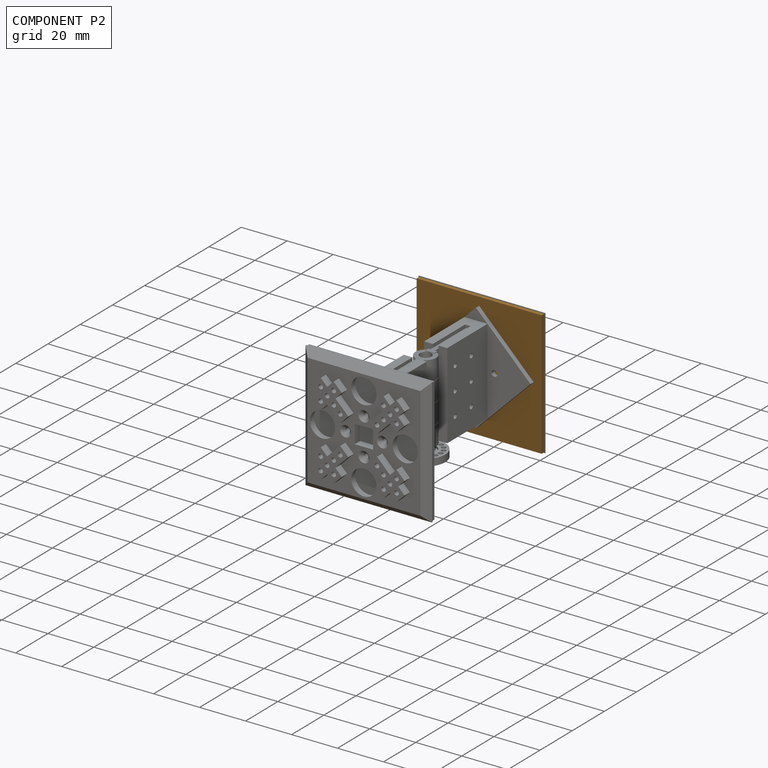
[diagram: component P2 — assembled]
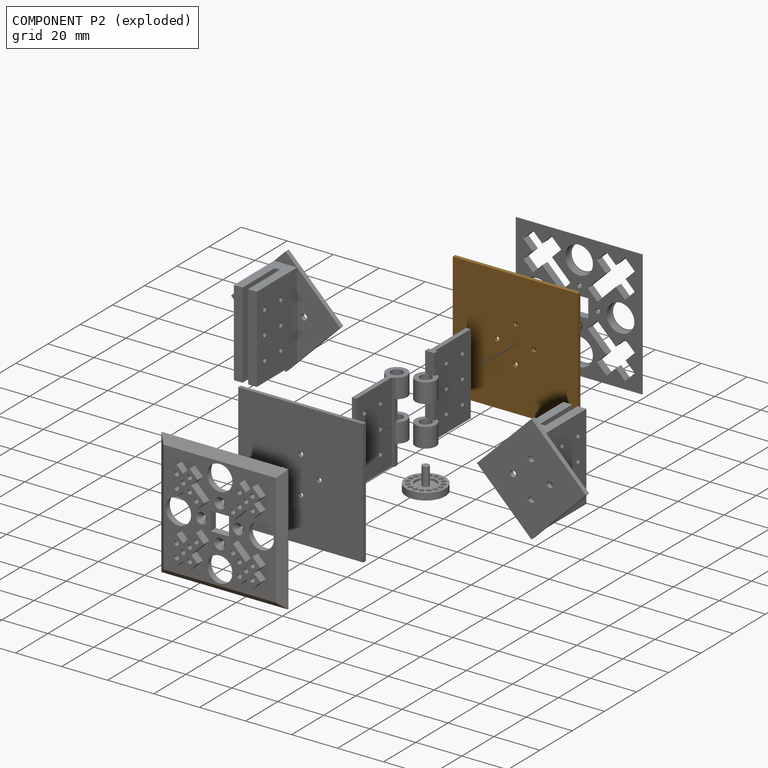
[diagram: component P2 — exploded]
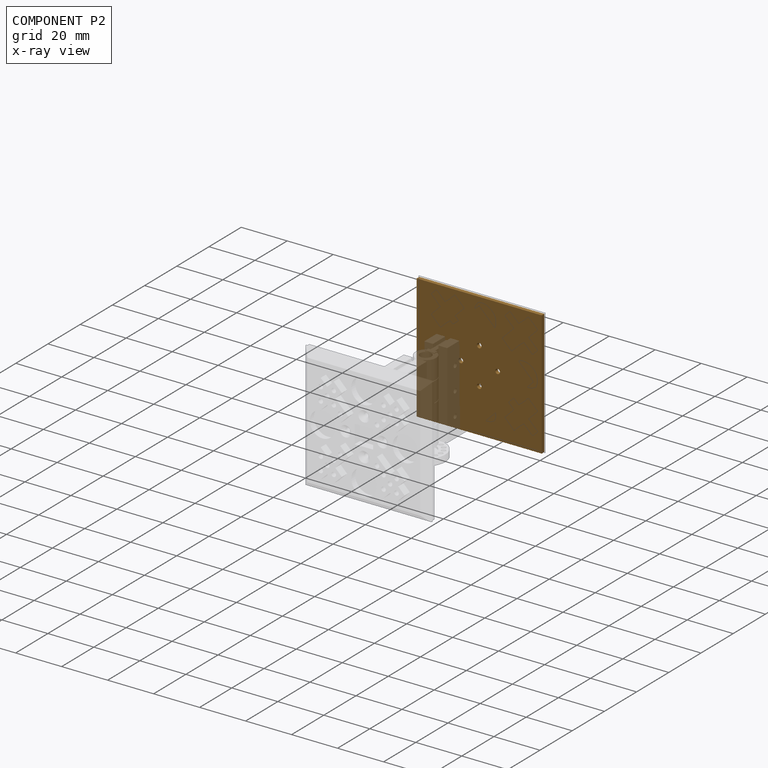
[diagram: component P2 — x-ray view]
COMPONENT P2 — geometry summary (no construction recipe available for this part):
  bounding box: 54.4 x 54.4 x 1.6 mm
  B-rep topology: 1 solid, 10 faces, 48 edges
  volume: 4715 mm^3 (100% of its bounding box)
  symmetry: 2-fold rotationally symmetric about the x axis; 4-fold rotationally symmetric about the y axis; 2-fold rotationally symmetric about the z axis; mirror-symmetric across its x mid-plane, y mid-plane, z mid-plane
Held by: SLIDER mate "Slider 7" to P6; SLIDER mate "Slider 6" to P7; PLANAR mate "Planar 3" to P6; PLANAR mate "Planar 4" to P7.
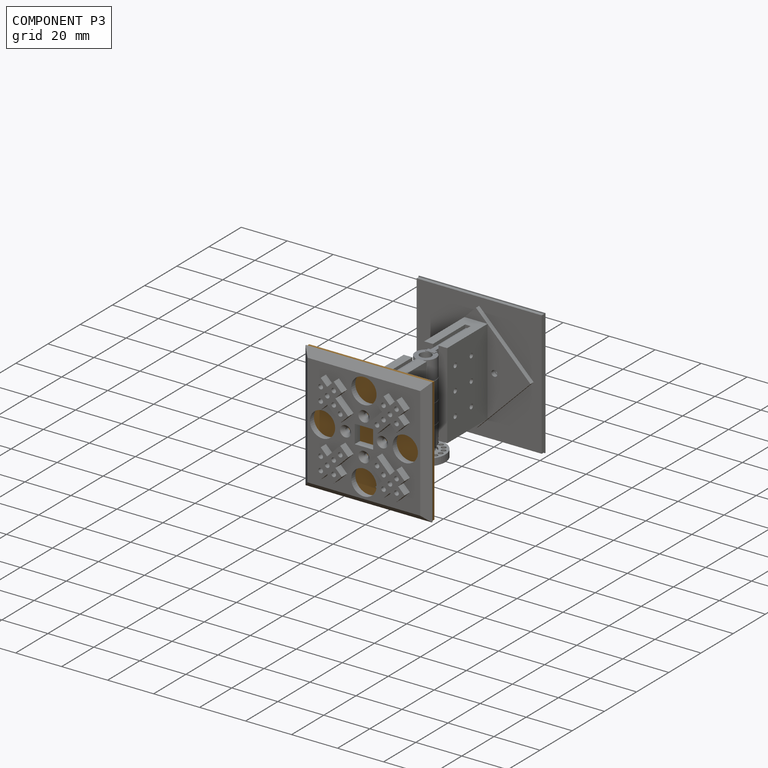
[diagram: component P3 — assembled]
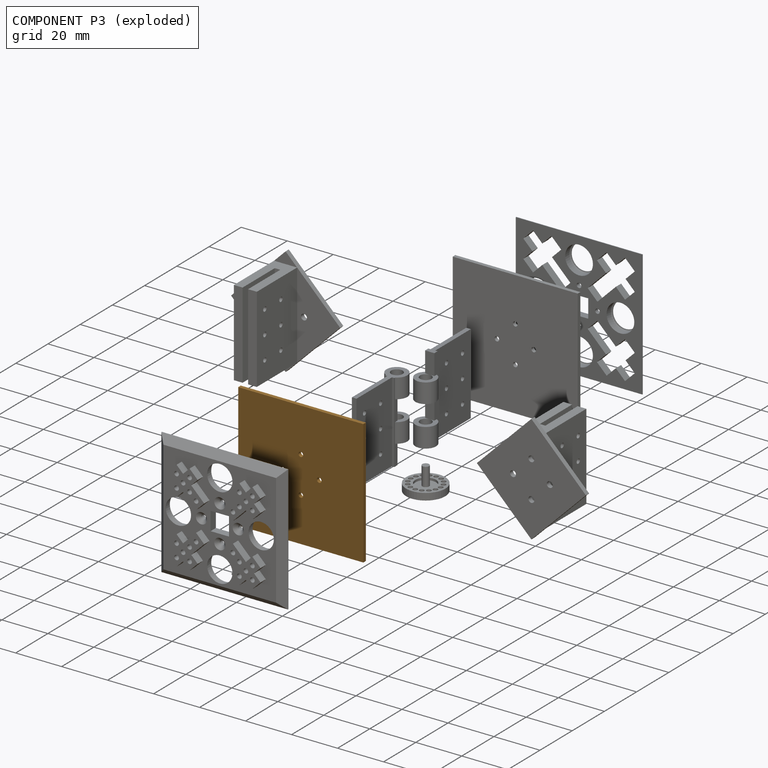
[diagram: component P3 — exploded]
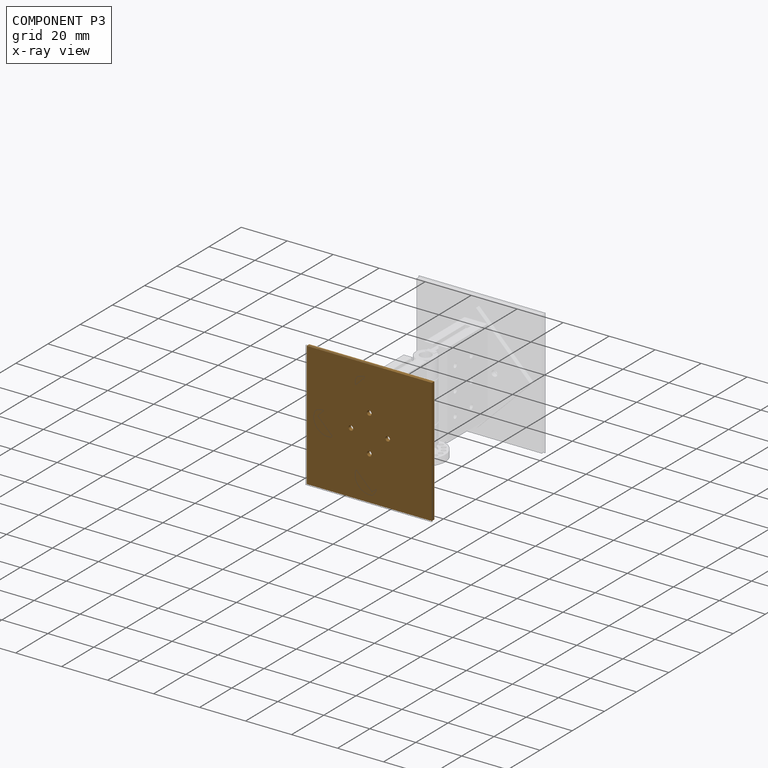
[diagram: component P3 — x-ray view]
COMPONENT P3 — geometry summary (no construction recipe available for this part):
  bounding box: 54.4 x 54.4 x 1.6 mm
  B-rep topology: 1 solid, 10 faces, 48 edges
  volume: 4715 mm^3 (100% of its bounding box)
  symmetry: 2-fold rotationally symmetric about the x axis; 4-fold rotationally symmetric about the y axis; 2-fold rotationally symmetric about the z axis; mirror-symmetric across its x mid-plane, y mid-plane, z mid-plane
Held by: SLIDER mate "Slider 3" to P8; PLANAR mate "Planar 2" to P8; SLIDER mate "Slider 2" to P4; PLANAR mate "Planar 1" to P4.
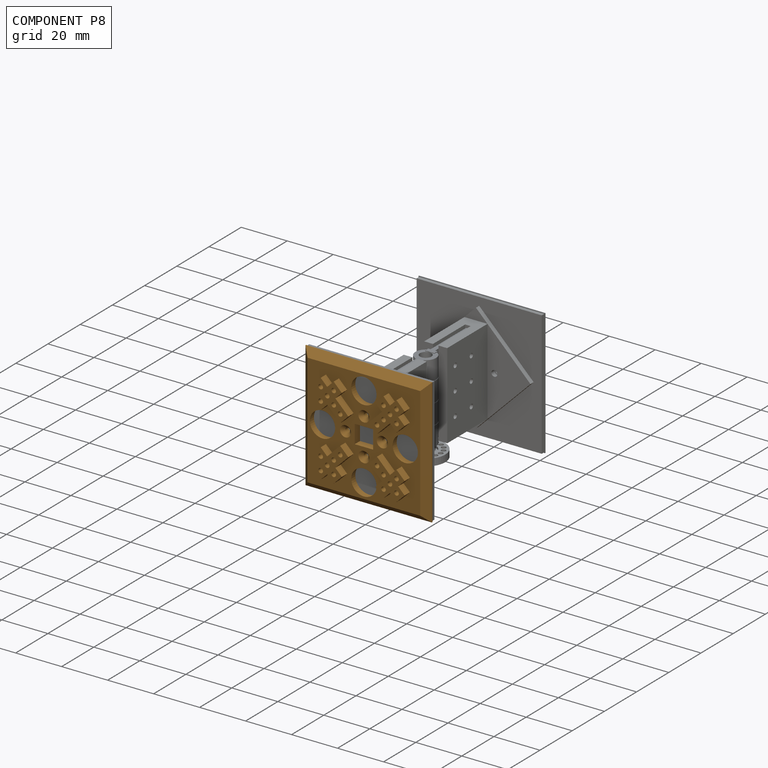
[diagram: component P8 — assembled]
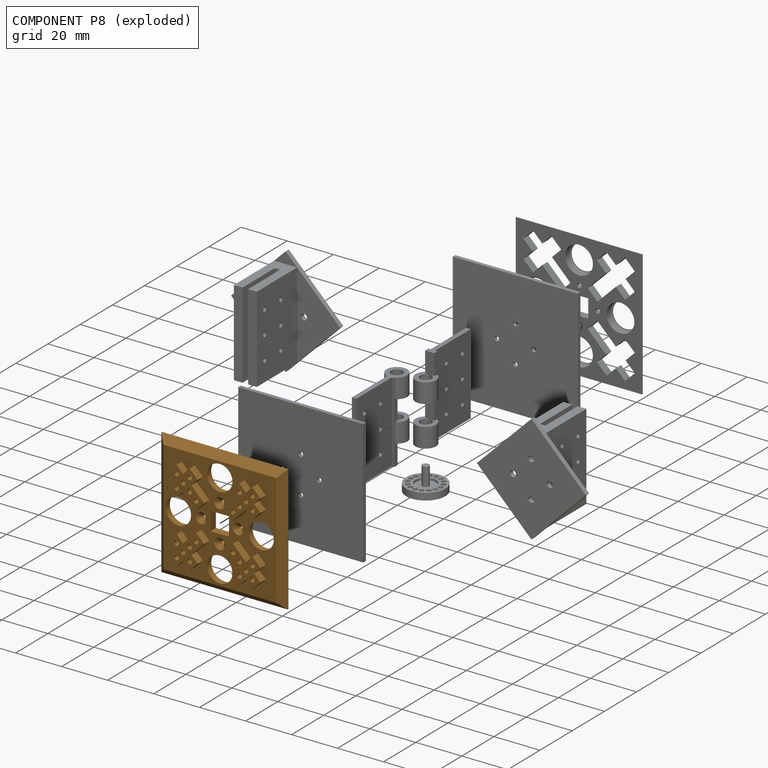
[diagram: component P8 — exploded]
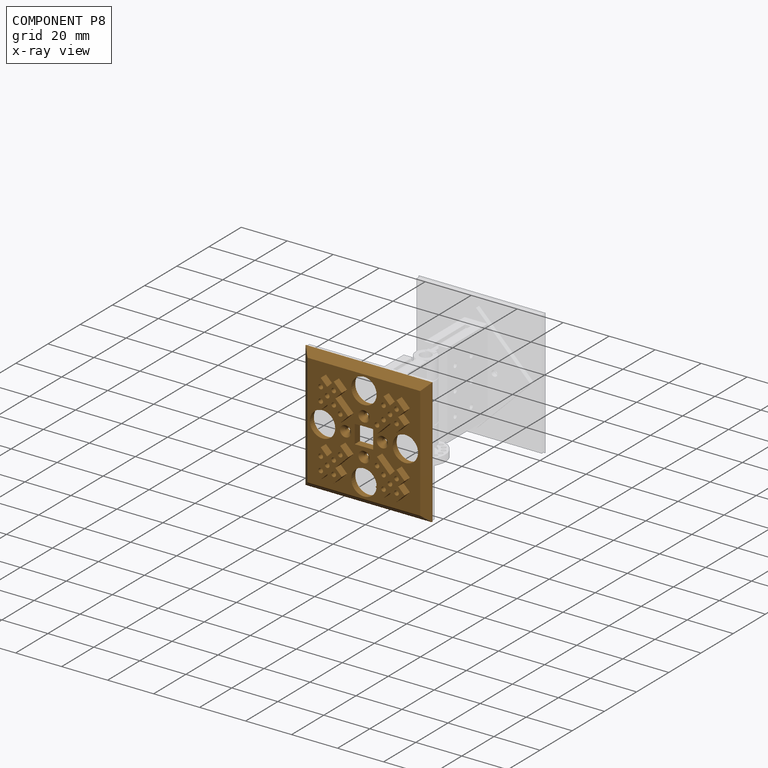
[diagram: component P8 — x-ray view]
COMPONENT P8 — geometry summary (no construction recipe available for this part):
  bounding box: 55.0 x 55.0 x 6.6 mm
  B-rep topology: 1 solid, 114 faces, 614 edges
  volume: 8405 mm^3 (42% of its bounding box)
  symmetry: 4-fold rotationally symmetric about the y axis; mirror-symmetric across its x mid-plane, z mid-plane
Held by: SLIDER mate "Slider 3" to P3; PLANAR mate "Planar 2" to P3.
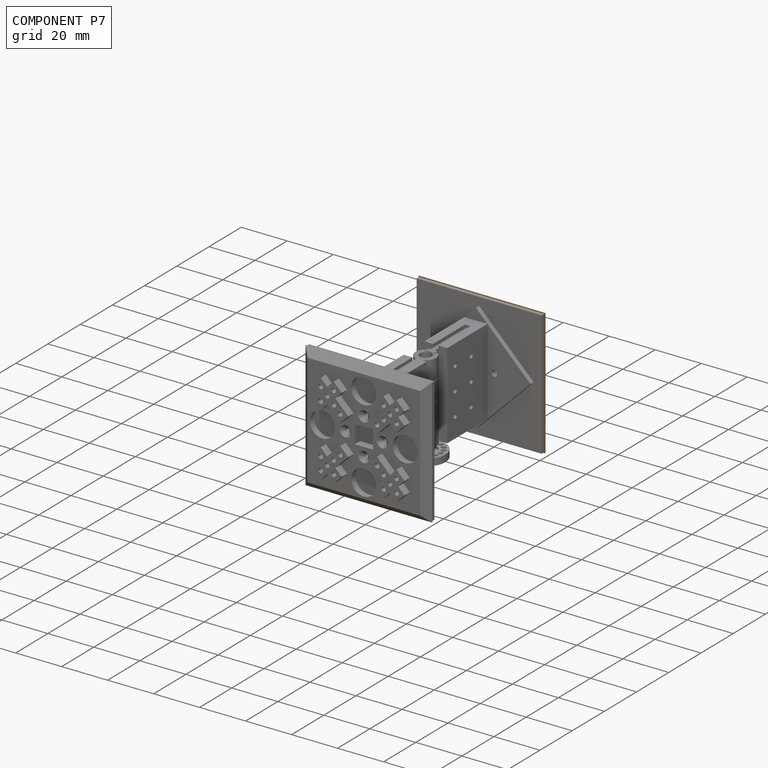
[diagram: component P7 — assembled]
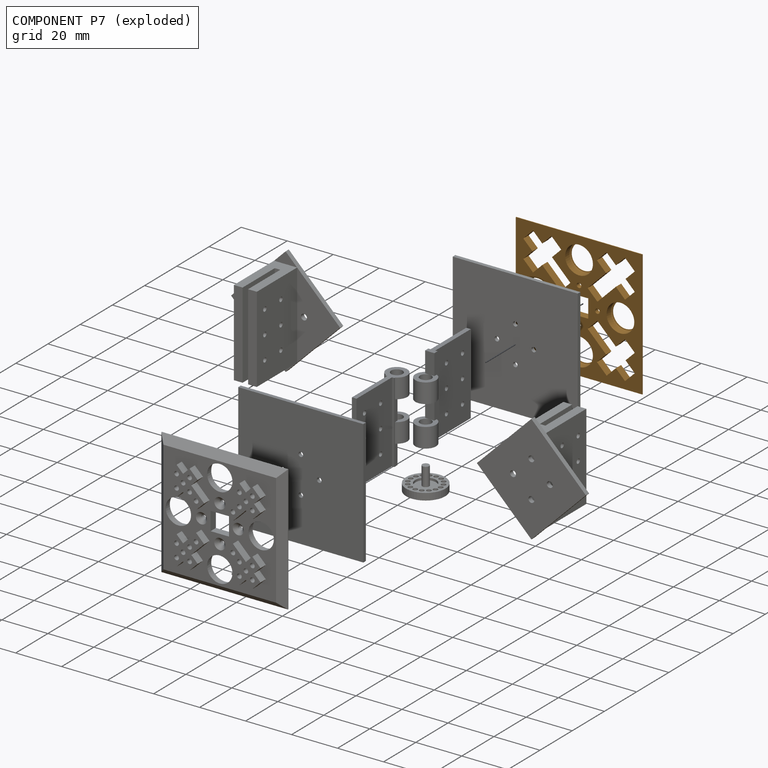
[diagram: component P7 — exploded]
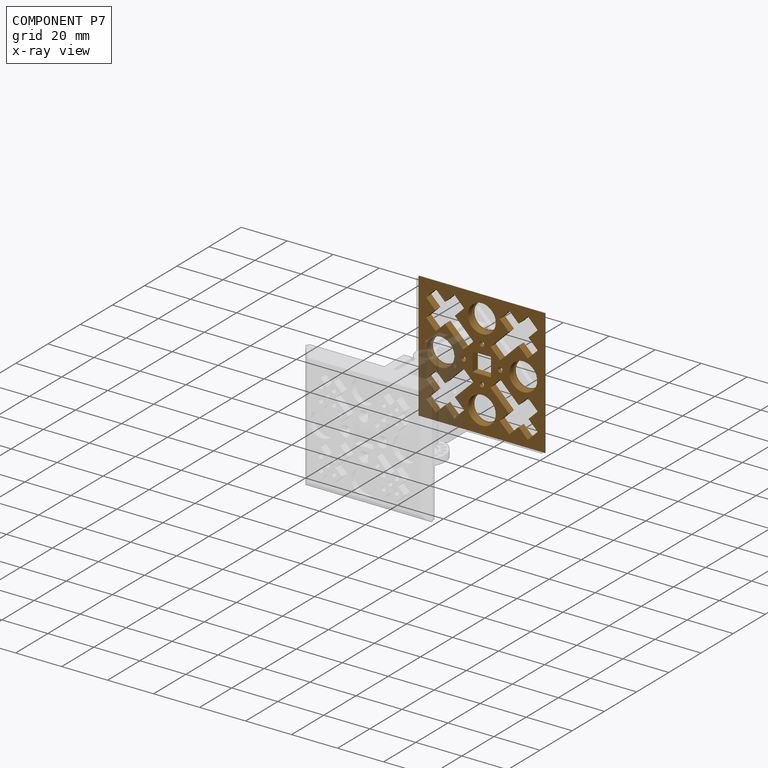
[diagram: component P7 — x-ray view]
COMPONENT P7 — geometry summary (no construction recipe available for this part):
  bounding box: 55.0 x 55.0 x 3.3 mm
  B-rep topology: 1 solid, 86 faces, 470 edges
  volume: 4538 mm^3 (45% of its bounding box)
  symmetry: 4-fold rotationally symmetric about the y axis; mirror-symmetric across its x mid-plane, z mid-plane
Held by: SLIDER mate "Slider 6" to P2; PLANAR mate "Planar 4" to P2.
PROVENANCE & LICENSES
Assembly (occurrences, transforms, mates, per-part STEP geometry): AutoMate dataset, Zenodo record 7776208, CC0.
Construction recipes: CADFS (HuggingFace VladPyatov/CADFS, CC-BY-4.0, layered over the ABC dataset), FeatureScript reconstruction programs keyed by ABC model id.
Join: ABC meta listings map ABC model id -> Onshape documentId; within a shared document, parts are matched by geometric signature (bounding-box dims + volume at 0.1% relative tolerance, exact B-rep face/solid counts).
Verification: 5 of this assembly's 9 components carry a recipe attachment, and every attachment is mesh-verified: the CADFS STEP and the AutoMate member STEP were compared as meshes in their shared local frame (symmetric sampled-point-to-mesh distance); worst across the 5 attachments: below the mesh-comparison resolution (tessellation chordal tolerance ~0.108 mm) on a 72 mm part.
Renders: orthographic iso camera (az 35 / el 25); the floor grid conveys scale (grid pitch printed in each image; no ruler). In the exploded view each component is displaced by its stored offset vector: the offsets alone carry the explosion direction (mate normal/axis signs are not orientation cues and do not encode it), and separation distances are assigned per mate-chain, not proportionally to assembly-order depth.
